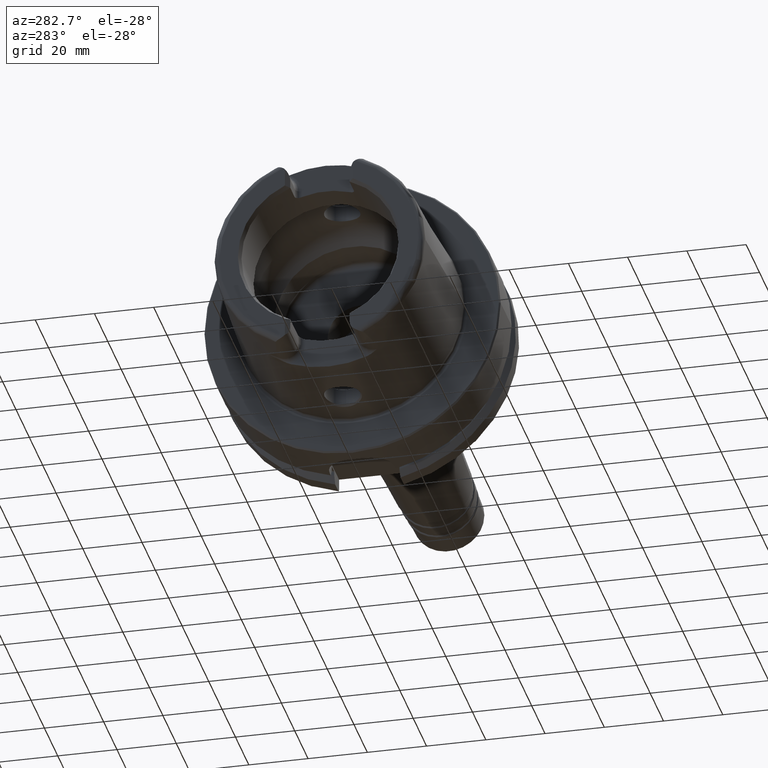
[diagram: clean part render]
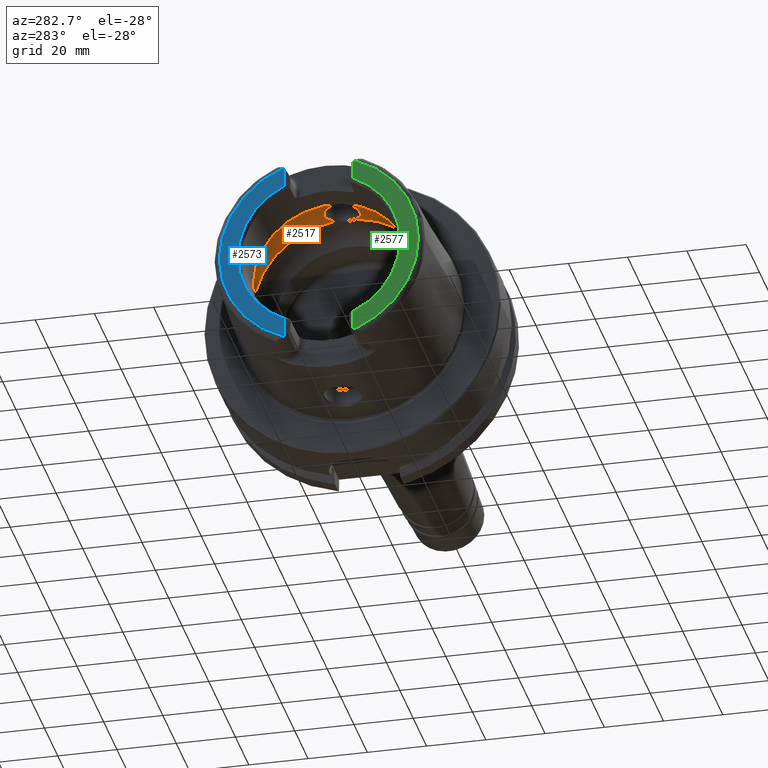
[diagram: same view with three faces highlighted in distinct colors, each labeled with its STEP entity id]
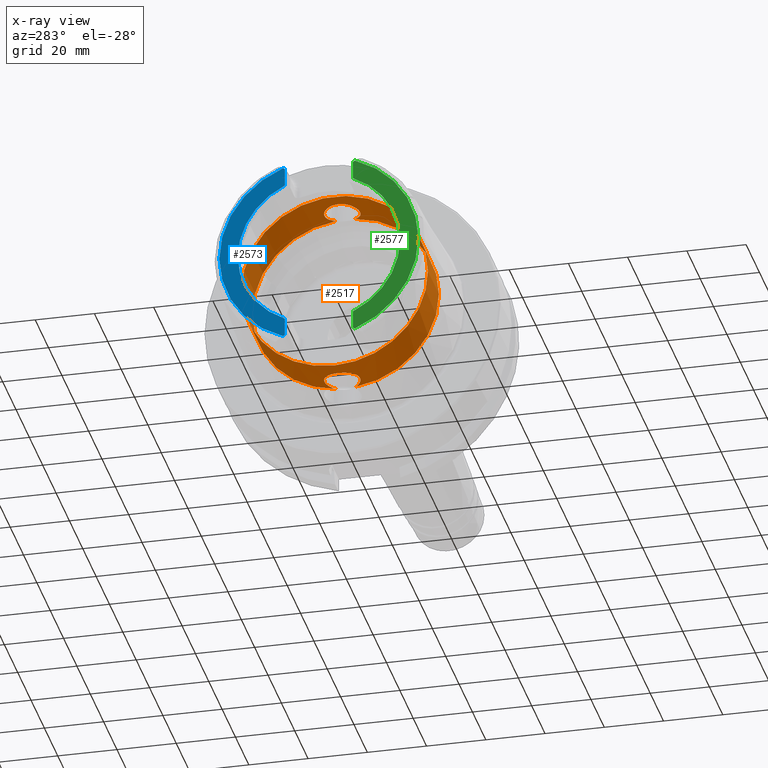
[diagram: x-ray of the same camera — body ghosted, the three highlighted faces saturated]
A machine part, auxiliary view with three faces highlighted in distinct colors.
The next image is the same camera in x-ray (body ghosted, the three faces saturated) — at least one of them is partly hidden behind the body in this view.
Their STEP definitions:

[orange] entity #2517 — the highlighted cylindrical surface (bore or boss wall) has radius 31.5 mm, axis along (-1, 0, 0).
#50=B_SPLINE_CURVE_WITH_KNOTS('',3,(#4561,#4562,#4563,#4564,#4565,#4566,
#4567,#4568,#4569,#4570,#4571,#4572,#4573,#4574,#4575,#4576,#4577,#4578,
#4579,#4580,#4581,#4582,#4583,#4584,#4585,#4586,#4587,#4588,#4589,#4590,
#4591),.UNSPECIFIED.,.F.,.F.,(4,2,2,2,2,2,2,2,2,2,2,3,2,2,4),(-2.38315208047406,
-2.26609494287567,-2.03948128472637,-1.81286762657707,-1.58625396842777,
-1.35964031027847,-1.1330370617835,-0.906433813288535,-0.679830564793567,
-0.453227316298599,-0.226613658149299,0.,0.2266136581493,0.453227316298599,
0.570284453980294),.UNSPECIFIED.);
#55=B_SPLINE_CURVE_WITH_KNOTS('',3,(#4753,#4754,#4755,#4756,#4757,#4758,
#4759,#4760,#4761,#4762,#4763,#4764,#4765,#4766,#4767,#4768,#4769,#4770,
#4771,#4772,#4773,#4774,#4775,#4776,#4777,#4778,#4779,#4780,#4781,#4782,
#4783),.UNSPECIFIED.,.F.,.F.,(4,2,2,3,2,2,2,2,2,2,2,2,2,2,4),(-0.570284453896985,
-0.453227316298598,-0.226613658149299,0.,0.2266136581493,0.453227316298599,
0.679830564793567,0.906433813288535,1.1330370617835,1.35964031027847,1.58625396842777,
1.81286762657707,2.03948128472637,2.26609494287567,2.38315208055736),
 .UNSPECIFIED.);
#216=LINE('',#4801,#328);
#328=VECTOR('',#3371,31.5);
#399=CYLINDRICAL_SURFACE('',#2788,31.5);
#470=FACE_OUTER_BOUND('',#608,.T.);
#608=EDGE_LOOP('',(#1950,#1951,#1952,#1953,#1954,#1955,#1956,#1957,#1958,
#1959));
#811=CIRCLE('',#2789,31.5);
#812=CIRCLE('',#2790,31.5);
#813=CIRCLE('',#2791,31.5);
#814=CIRCLE('',#2792,31.5);
#815=CIRCLE('',#2793,31.5);
#816=CIRCLE('',#2794,31.5);
#1069=VERTEX_POINT('',#4549);
#1070=VERTEX_POINT('',#4560);
#1073=VERTEX_POINT('',#4740);
#1075=VERTEX_POINT('',#4752);
#1077=VERTEX_POINT('',#4798);
#1078=VERTEX_POINT('',#4800);
#1079=VERTEX_POINT('',#4802);
#1080=VERTEX_POINT('',#4804);
#1395=EDGE_CURVE('',#1070,#1069,#50,.T.);
#1401=EDGE_CURVE('',#1075,#1073,#55,.T.);
#1405=EDGE_CURVE('',#1077,#1073,#811,.T.);
#1406=EDGE_CURVE('',#1077,#1078,#216,.T.);
#1407=EDGE_CURVE('',#1078,#1079,#812,.T.);
#1408=EDGE_CURVE('',#1079,#1080,#813,.T.);
#1409=EDGE_CURVE('',#1080,#1078,#814,.T.);
#1410=EDGE_CURVE('',#1070,#1077,#815,.T.);
#1411=EDGE_CURVE('',#1075,#1069,#816,.T.);
#1950=ORIENTED_EDGE('',*,*,#1401,.T.);
#1951=ORIENTED_EDGE('',*,*,#1405,.F.);
#1952=ORIENTED_EDGE('',*,*,#1406,.T.);
#1953=ORIENTED_EDGE('',*,*,#1407,.T.);
#1954=ORIENTED_EDGE('',*,*,#1408,.T.);
#1955=ORIENTED_EDGE('',*,*,#1409,.T.);
#1956=ORIENTED_EDGE('',*,*,#1406,.F.);
#1957=ORIENTED_EDGE('',*,*,#1410,.F.);
#1958=ORIENTED_EDGE('',*,*,#1395,.T.);
#1959=ORIENTED_EDGE('',*,*,#1411,.F.);
#2517=ADVANCED_FACE('',(#470),#399,.F.);
#2788=AXIS2_PLACEMENT_3D('',#4797,#3367,#3368);
#2789=AXIS2_PLACEMENT_3D('',#4799,#3369,#3370);
#2790=AXIS2_PLACEMENT_3D('',#4803,#3372,#3373);
#2791=AXIS2_PLACEMENT_3D('',#4805,#3374,#3375);
#2792=AXIS2_PLACEMENT_3D('',#4806,#3376,#3377);
#2793=AXIS2_PLACEMENT_3D('',#4807,#3378,#3379);
#2794=AXIS2_PLACEMENT_3D('',#4808,#3380,#3381);
#3367=DIRECTION('center_axis',(-1.,0.,0.));
#3368=DIRECTION('ref_axis',(0.,1.,0.));
#3369=DIRECTION('center_axis',(-1.,0.,0.));
#3370=DIRECTION('ref_axis',(0.,0.,1.));
#3371=DIRECTION('',(-1.,0.,0.));
#3372=DIRECTION('center_axis',(-1.,0.,0.));
#3373=DIRECTION('ref_axis',(0.,0.,1.));
#3374=DIRECTION('center_axis',(-1.,0.,0.));
#3375=DIRECTION('ref_axis',(0.,0.,1.));
#3376=DIRECTION('center_axis',(-1.,0.,0.));
#3377=DIRECTION('ref_axis',(0.,0.,1.));
#3378=DIRECTION('center_axis',(-1.,0.,0.));
#3379=DIRECTION('ref_axis',(0.,0.,1.));
#3380=DIRECTION('center_axis',(-1.,0.,0.));
#3381=DIRECTION('ref_axis',(0.,0.,1.));
#4549=CARTESIAN_POINT('',(-10.,3.31662479035542,-31.3249102153542));
#4560=CARTESIAN_POINT('',(-10.,-3.31662479035542,-31.3249102153542));
#4561=CARTESIAN_POINT('Ctrl Pts',(-10.,-3.31662479035541,-31.3249102153542));
#4562=CARTESIAN_POINT('Ctrl Pts',(-10.2254184154804,-3.65645583807581,-31.2889295191717));
#4563=CARTESIAN_POINT('Ctrl Pts',(-10.482718625598,-3.96799999983657,-31.2503087518862));
#4564=CARTESIAN_POINT('Ctrl Pts',(-11.289042660848,-4.77432403508655,-31.140708727458));
#4565=CARTESIAN_POINT('Ctrl Pts',(-11.9624834305428,-5.23577180141274,-31.0633803744766));
#4566=CARTESIAN_POINT('Ctrl Pts',(-13.4401908644727,-5.84865855662958,-30.9538382316308));
#4567=CARTESIAN_POINT('Ctrl Pts',(-14.2446211395023,-6.00000000000001,-30.9232921921325));
#4568=CARTESIAN_POINT('Ctrl Pts',(-15.7553788604977,-6.00000000000001,-30.9232921921325));
#4569=CARTESIAN_POINT('Ctrl Pts',(-16.5598091355273,-5.84865855662958,-30.9538382316308));
#4570=CARTESIAN_POINT('Ctrl Pts',(-18.0375165694572,-5.23577180141275,-31.0633803744766));
#4571=CARTESIAN_POINT('Ctrl Pts',(-18.710957339152,-4.77432403508655,-31.140708727458));
#4572=CARTESIAN_POINT('Ctrl Pts',(-19.7742996118461,-3.71098176239249,-31.2852440928545));
#4573=CARTESIAN_POINT('Ctrl Pts',(-20.2357665181958,-3.03753058698362,-31.3619556484746));
#4574=CARTESIAN_POINT('Ctrl Pts',(-20.8486671603361,-1.55978711209124,-31.4700797313679));
#4575=CARTESIAN_POINT('Ctrl Pts',(-21.,-0.755344161649895,-31.5));
#4576=CARTESIAN_POINT('Ctrl Pts',(-21.,0.755344161649892,-31.5));
#4577=CARTESIAN_POINT('Ctrl Pts',(-20.8486671603361,1.55978711209124,-31.4700797313679));
#4578=CARTESIAN_POINT('Ctrl Pts',(-20.2357665181958,3.03753058698362,-31.3619556484746));
#4579=CARTESIAN_POINT('Ctrl Pts',(-19.7742996118461,3.71098176239249,-31.2852440928545));
#4580=CARTESIAN_POINT('Ctrl Pts',(-18.710957339152,4.77432403508655,-31.140708727458));
#4581=CARTESIAN_POINT('Ctrl Pts',(-18.0375165694572,5.23577180141274,-31.0633803744766));
#4582=CARTESIAN_POINT('Ctrl Pts',(-16.5598091355273,5.84865855662958,-30.9538382316308));
#4583=CARTESIAN_POINT('Ctrl Pts',(-15.7553788604977,6.00000000000001,-30.9232921921325));
#4584=CARTESIAN_POINT('Ctrl Pts',(-15.,6.00000000000001,-30.9232921921325));
#4585=CARTESIAN_POINT('Ctrl Pts',(-14.2446211395023,6.00000000000001,-30.9232921921325));
#4586=CARTESIAN_POINT('Ctrl Pts',(-13.4401908644727,5.84865855662958,-30.9538382316308));
#4587=CARTESIAN_POINT('Ctrl Pts',(-11.9624834305428,5.23577180141274,-31.0633803744766));
#4588=CARTESIAN_POINT('Ctrl Pts',(-11.289042660848,4.77432403508655,-31.140708727458));
#4589=CARTESIAN_POINT('Ctrl Pts',(-10.4827186254025,3.96799999964111,-31.2503087519128));
#4590=CARTESIAN_POINT('Ctrl Pts',(-10.2254184154949,3.65645583809765,-31.2889295191694));
#4591=CARTESIAN_POINT('Ctrl Pts',(-10.,3.31662479035541,-31.3249102153542));
#4740=CARTESIAN_POINT('',(-10.,-3.31662479035542,31.3249102153542));
#4752=CARTESIAN_POINT('',(-10.,3.31662479035542,31.3249102153542));
#4753=CARTESIAN_POINT('Ctrl Pts',(-10.,3.31662479035542,31.3249102153542));
#4754=CARTESIAN_POINT('Ctrl Pts',(-10.2254184154804,3.65645583807582,31.2889295191717));
#4755=CARTESIAN_POINT('Ctrl Pts',(-10.482718625598,3.96799999983657,31.2503087518862));
#4756=CARTESIAN_POINT('Ctrl Pts',(-11.289042660848,4.77432403508655,31.140708727458));
#4757=CARTESIAN_POINT('Ctrl Pts',(-11.9624834305428,5.23577180141274,31.0633803744766));
#4758=CARTESIAN_POINT('Ctrl Pts',(-13.4401908644727,5.84865855662958,30.9538382316308));
#4759=CARTESIAN_POINT('Ctrl Pts',(-14.2446211395023,6.00000000000001,30.9232921921325));
#4760=CARTESIAN_POINT('Ctrl Pts',(-15.,6.00000000000001,30.9232921921325));
#4761=CARTESIAN_POINT('Ctrl Pts',(-15.7553788604977,6.00000000000001,30.9232921921325));
#4762=CARTESIAN_POINT('Ctrl Pts',(-16.5598091355273,5.84865855662958,30.9538382316308));
#4763=CARTESIAN_POINT('Ctrl Pts',(-18.0375165694572,5.23577180141274,31.0633803744766));
#4764=CARTESIAN_POINT('Ctrl Pts',(-18.710957339152,4.77432403508655,31.140708727458));
#4765=CARTESIAN_POINT('Ctrl Pts',(-19.7742996118461,3.71098176239249,31.2852440928545));
#4766=CARTESIAN_POINT('Ctrl Pts',(-20.2357665181958,3.03753058698362,31.3619556484746));
#4767=CARTESIAN_POINT('Ctrl Pts',(-20.8486671603361,1.55978711209124,31.4700797313679));
#4768=CARTESIAN_POINT('Ctrl Pts',(-21.,0.755344161649892,31.5));
#4769=CARTESIAN_POINT('Ctrl Pts',(-21.,-0.755344161649894,31.5));
#4770=CARTESIAN_POINT('Ctrl Pts',(-20.8486671603361,-1.55978711209124,31.4700797313679));
#4771=CARTESIAN_POINT('Ctrl Pts',(-20.2357665181958,-3.03753058698362,31.3619556484746));
#4772=CARTESIAN_POINT('Ctrl Pts',(-19.7742996118461,-3.71098176239249,31.2852440928545));
#4773=CARTESIAN_POINT('Ctrl Pts',(-18.710957339152,-4.77432403508655,31.140708727458));
#4774=CARTESIAN_POINT('Ctrl Pts',(-18.0375165694572,-5.23577180141274,31.0633803744766));
#4775=CARTESIAN_POINT('Ctrl Pts',(-16.5598091355273,-5.84865855662958,30.9538382316308));
#4776=CARTESIAN_POINT('Ctrl Pts',(-15.7553788604977,-6.00000000000001,30.9232921921325));
#4777=CARTESIAN_POINT('Ctrl Pts',(-14.2446211395023,-6.00000000000001,30.9232921921325));
#4778=CARTESIAN_POINT('Ctrl Pts',(-13.4401908644727,-5.84865855662958,30.9538382316308));
#4779=CARTESIAN_POINT('Ctrl Pts',(-11.9624834305428,-5.23577180141274,31.0633803744766));
#4780=CARTESIAN_POINT('Ctrl Pts',(-11.289042660848,-4.77432403508655,31.140708727458));
#4781=CARTESIAN_POINT('Ctrl Pts',(-10.4827186254025,-3.96799999964111,31.2503087519128));
#4782=CARTESIAN_POINT('Ctrl Pts',(-10.2254184154949,-3.65645583809765,31.2889295191694));
#4783=CARTESIAN_POINT('Ctrl Pts',(-10.,-3.31662479035542,31.3249102153542));
#4797=CARTESIAN_POINT('Origin',(-18.2696370289182,0.,0.));
#4798=CARTESIAN_POINT('',(-10.,-31.5,3.85763741731416E-15));
#4799=CARTESIAN_POINT('Origin',(-10.,0.,0.));
#4800=CARTESIAN_POINT('',(-26.5392740578363,-31.5,3.85763741731416E-15));
#4801=CARTESIAN_POINT('',(-18.2696370289182,-31.5,3.85763741731416E-15));
#4802=CARTESIAN_POINT('',(-26.5392740578363,31.5,0.));
#4803=CARTESIAN_POINT('Origin',(-26.5392740578363,0.,0.));
#4804=CARTESIAN_POINT('',(-26.5392740578363,-3.85763741731416E-15,-31.5));
#4805=CARTESIAN_POINT('Origin',(-26.5392740578363,0.,0.));
#4806=CARTESIAN_POINT('Origin',(-26.5392740578363,0.,0.));
#4807=CARTESIAN_POINT('Origin',(-10.,0.,0.));
#4808=CARTESIAN_POINT('Origin',(-10.,0.,0.));

[blue] entity #2573 — the highlighted planar face has unit normal (-1, 0, 0).
#156=PLANE('',#2910);
#188=LINE('',#4065,#300);
#204=LINE('',#4213,#316);
#300=VECTOR('',#3265,10.);
#316=VECTOR('',#3325,10.);
#526=FACE_OUTER_BOUND('',#665,.T.);
#665=EDGE_LOOP('',(#2279,#2280,#2281,#2282,#2283,#2284));
#794=CIRCLE('',#2753,4.88);
#803=CIRCLE('',#2776,4.88);
#876=CIRCLE('',#2909,27.3660254037844);
#877=CIRCLE('',#2911,33.6001839277785);
#1012=VERTEX_POINT('',#4058);
#1015=VERTEX_POINT('',#4063);
#1018=VERTEX_POINT('',#4073);
#1044=VERTEX_POINT('',#4210);
#1045=VERTEX_POINT('',#4212);
#1050=VERTEX_POINT('',#4231);
#1326=EDGE_CURVE('',#1015,#1012,#188,.T.);
#1330=EDGE_CURVE('',#1018,#1012,#794,.T.);
#1361=EDGE_CURVE('',#1044,#1045,#204,.T.);
#1368=EDGE_CURVE('',#1044,#1050,#803,.T.);
#1563=EDGE_CURVE('',#1045,#1015,#876,.T.);
#1564=EDGE_CURVE('',#1018,#1050,#877,.T.);
#2279=ORIENTED_EDGE('',*,*,#1326,.F.);
#2280=ORIENTED_EDGE('',*,*,#1563,.F.);
#2281=ORIENTED_EDGE('',*,*,#1361,.F.);
#2282=ORIENTED_EDGE('',*,*,#1368,.T.);
#2283=ORIENTED_EDGE('',*,*,#1564,.F.);
#2284=ORIENTED_EDGE('',*,*,#1330,.T.);
#2573=ADVANCED_FACE('',(#526),#156,.T.);
#2753=AXIS2_PLACEMENT_3D('',#4074,#3273,#3274);
#2776=AXIS2_PLACEMENT_3D('',#4244,#3334,#3335);
#2909=AXIS2_PLACEMENT_3D('',#5411,#3662,#3663);
#2910=AXIS2_PLACEMENT_3D('',#5412,#3664,#3665);
#2911=AXIS2_PLACEMENT_3D('',#5413,#3666,#3667);
#3265=DIRECTION('',(0.,0.,-1.));
#3273=DIRECTION('center_axis',(-1.,0.,0.));
#3274=DIRECTION('ref_axis',(0.,-0.477884921181368,0.878422450821629));
#3325=DIRECTION('',(0.,0.,-1.));
#3334=DIRECTION('center_axis',(-1.,0.,0.));
#3335=DIRECTION('ref_axis',(0.,1.,0.));
#3662=DIRECTION('center_axis',(-1.,0.,0.));
#3663=DIRECTION('ref_axis',(0.,-1.,0.));
#3664=DIRECTION('center_axis',(-1.,0.,0.));
#3665=DIRECTION('ref_axis',(0.,0.,1.));
#3666=DIRECTION('center_axis',(1.,0.,0.));
#3667=DIRECTION('ref_axis',(0.,0.,-1.));
#4058=CARTESIAN_POINT('',(-50.,11.51,-30.8899431813596));
#4063=CARTESIAN_POINT('',(-50.,11.51,-24.8277918148307));
#4065=CARTESIAN_POINT('',(-50.,11.51,-10.));
#4073=CARTESIAN_POINT('',(-50.,12.0743049948301,-31.355757348091));
#4074=CARTESIAN_POINT('Origin',(-50.,14.89,-27.37));
#4210=CARTESIAN_POINT('',(-50.,11.51,30.8899431813596));
#4212=CARTESIAN_POINT('',(-50.,11.51,24.8277918148307));
#4213=CARTESIAN_POINT('',(-50.,11.51,13.685));
#4231=CARTESIAN_POINT('',(-50.,12.0743049948301,31.355757348091));
#4244=CARTESIAN_POINT('Origin',(-50.,14.89,27.37));
#5411=CARTESIAN_POINT('Origin',(-50.,0.,0.));
#5412=CARTESIAN_POINT('Origin',(-50.,33.6001839277785,0.));
#5413=CARTESIAN_POINT('Origin',(-50.,0.,0.));

[green] entity #2577 — the highlighted planar face has unit normal (-1, 0, 0).
#158=PLANE('',#2916);
#193=LINE('',#4117,#305);
#200=LINE('',#4175,#312);
#305=VECTOR('',#3284,10.);
#312=VECTOR('',#3309,10.);
#530=FACE_OUTER_BOUND('',#669,.T.);
#669=EDGE_LOOP('',(#2297,#2298,#2299,#2300,#2301,#2302));
#799=CIRCLE('',#2762,4.88);
#800=CIRCLE('',#2769,4.88);
#878=CIRCLE('',#2914,33.6001839277785);
#879=CIRCLE('',#2917,27.3660254037844);
#1024=VERTEX_POINT('',#4114);
#1025=VERTEX_POINT('',#4116);
#1032=VERTEX_POINT('',#4149);
#1034=VERTEX_POINT('',#4168);
#1037=VERTEX_POINT('',#4173);
#1040=VERTEX_POINT('',#4183);
#1337=EDGE_CURVE('',#1024,#1025,#193,.T.);
#1346=EDGE_CURVE('',#1024,#1032,#799,.T.);
#1352=EDGE_CURVE('',#1037,#1034,#200,.T.);
#1356=EDGE_CURVE('',#1040,#1034,#800,.T.);
#1565=EDGE_CURVE('',#1040,#1032,#878,.T.);
#1566=EDGE_CURVE('',#1025,#1037,#879,.T.);
#2297=ORIENTED_EDGE('',*,*,#1337,.F.);
#2298=ORIENTED_EDGE('',*,*,#1346,.T.);
#2299=ORIENTED_EDGE('',*,*,#1565,.F.);
#2300=ORIENTED_EDGE('',*,*,#1356,.T.);
#2301=ORIENTED_EDGE('',*,*,#1352,.F.);
#2302=ORIENTED_EDGE('',*,*,#1566,.F.);
#2577=ADVANCED_FACE('',(#530),#158,.T.);
#2762=AXIS2_PLACEMENT_3D('',#4162,#3296,#3297);
#2769=AXIS2_PLACEMENT_3D('',#4184,#3317,#3318);
#2914=AXIS2_PLACEMENT_3D('',#5416,#3672,#3673);
#2916=AXIS2_PLACEMENT_3D('',#5418,#3676,#3677);
#2917=AXIS2_PLACEMENT_3D('',#5419,#3678,#3679);
#3284=DIRECTION('',(0.,0.,1.));
#3296=DIRECTION('center_axis',(-1.,0.,0.));
#3297=DIRECTION('ref_axis',(0.,-1.,0.));
#3309=DIRECTION('',(0.,0.,1.));
#3317=DIRECTION('center_axis',(-1.,0.,0.));
#3318=DIRECTION('ref_axis',(0.,0.477884921181369,-0.878422450821629));
#3672=DIRECTION('center_axis',(1.,0.,0.));
#3673=DIRECTION('ref_axis',(0.,0.,-1.));
#3676=DIRECTION('center_axis',(-1.,0.,0.));
#3677=DIRECTION('ref_axis',(0.,0.,1.));
#3678=DIRECTION('center_axis',(-1.,0.,0.));
#3679=DIRECTION('ref_axis',(0.,-1.,0.));
#4114=CARTESIAN_POINT('',(-50.,-11.51,-30.8899431813596));
#4116=CARTESIAN_POINT('',(-50.,-11.51,-24.8277918148307));
#4117=CARTESIAN_POINT('',(-50.,-11.51,-13.685));
#4149=CARTESIAN_POINT('',(-50.,-12.0743049948301,-31.355757348091));
#4162=CARTESIAN_POINT('Origin',(-50.,-14.89,-27.37));
#4168=CARTESIAN_POINT('',(-50.,-11.51,30.8899431813596));
#4173=CARTESIAN_POINT('',(-50.,-11.51,24.8277918148307));
#4175=CARTESIAN_POINT('',(-50.,-11.51,9.));
#4183=CARTESIAN_POINT('',(-50.,-12.0743049948301,31.355757348091));
#4184=CARTESIAN_POINT('Origin',(-50.,-14.89,27.37));
#5416=CARTESIAN_POINT('Origin',(-50.,0.,0.));
#5418=CARTESIAN_POINT('Origin',(-50.,33.6001839277785,0.));
#5419=CARTESIAN_POINT('Origin',(-50.,0.,0.));